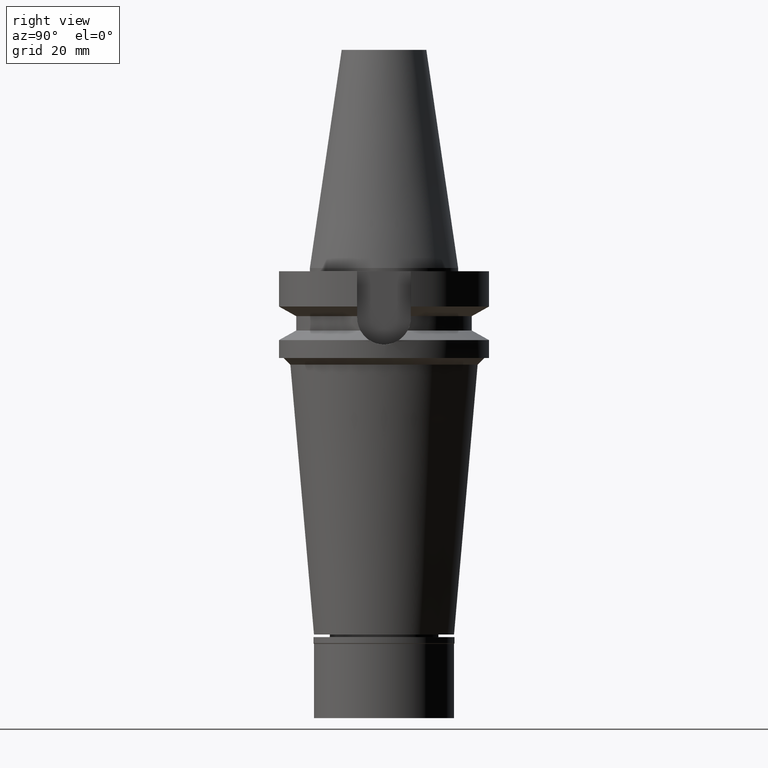
[diagram: clean part render]
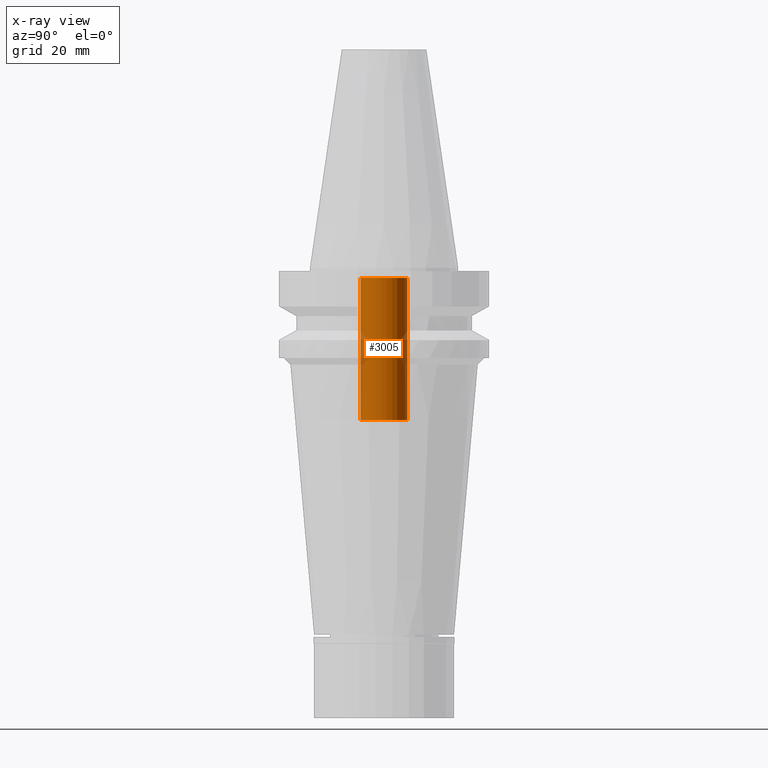
[diagram: x-ray — body ghosted, one internal face saturated and labeled with its STEP entity id]
A machine part, right view, then the same camera in x-ray: the body is ghosted and one INTERNAL B-rep face — a face not visible from any outside direction — is saturated and labeled: STEP entity #3005.
In plain terms, the highlighted cylindrical surface (edge-blend (fillet) strip) has radius 7 mm, axis along (0, 0, -1).
Its self-contained STEP definition (entity closure, byte-faithful):
#67 = VERTEX_POINT ( 'NONE', #2377 ) ;
#133 = VERTEX_POINT ( 'NONE', #469 ) ;
#157 = EDGE_CURVE ( 'NONE', #67, #133, #676, .T. ) ;
#248 = LINE ( 'NONE', #963, #3014 ) ;
#255 = CARTESIAN_POINT ( 'NONE',  ( 0.0000000000000000000, -7.000000000000000000, -45.60000000000000142 ) ) ;
#412 = DIRECTION ( 'NONE',  ( 0.0000000000000000000, 0.0000000000000000000, 1.000000000000000000 ) ) ;
#416 = AXIS2_PLACEMENT_3D ( 'NONE', #2178, #1696, #2406 ) ;
#442 = EDGE_CURVE ( 'NONE', #2252, #2541, #2914, .T. ) ;
#469 = CARTESIAN_POINT ( 'NONE',  ( 0.0000000000000000000, -7.000000000000000000, -45.60000000000000142 ) ) ;
#633 = ORIENTED_EDGE ( 'NONE', *, *, #1170, .T. ) ;
#676 = CIRCLE ( 'NONE', #416, 7.000000000000000000 ) ;
#733 = DIRECTION ( 'NONE',  ( 0.0000000000000000000, 0.0000000000000000000, 1.000000000000000000 ) ) ;
#841 = CARTESIAN_POINT ( 'NONE',  ( 0.0000000000000000000, 2.143682989567000019E-14, -3.000000000000000000 ) ) ;
#861 = EDGE_CURVE ( 'NONE', #67, #2541, #248, .T. ) ;
#862 = DIRECTION ( 'NONE',  ( 0.0000000000000000000, 0.0000000000000000000, -1.000000000000000000 ) ) ;
#879 = DIRECTION ( 'NONE',  ( 0.0000000000000000000, -1.000000000000000000, 0.0000000000000000000 ) ) ;
#963 = CARTESIAN_POINT ( 'NONE',  ( 0.0000000000000000000, 7.000000000000000000, -45.60000000000000142 ) ) ;
#1170 = EDGE_CURVE ( 'NONE', #133, #2252, #2216, .T. ) ;
#1339 = CARTESIAN_POINT ( 'NONE',  ( 0.0000000000000000000, 2.143682989567000019E-14, 75.04500000000000171 ) ) ;
#1511 = CARTESIAN_POINT ( 'NONE',  ( 0.0000000000000000000, -7.000000000000000000, -3.000000000000000000 ) ) ;
#1629 = FACE_OUTER_BOUND ( 'NONE', #2878, .T. ) ;
#1696 = DIRECTION ( 'NONE',  ( 0.0000000000000000000, 0.0000000000000000000, -1.000000000000000000 ) ) ;
#1827 = DIRECTION ( 'NONE',  ( 0.0000000000000000000, 0.0000000000000000000, 1.000000000000000000 ) ) ;
#2055 = VECTOR ( 'NONE', #412, 1000.000000000000000 ) ;
#2160 = ORIENTED_EDGE ( 'NONE', *, *, #861, .F. ) ;
#2178 = CARTESIAN_POINT ( 'NONE',  ( 0.0000000000000000000, 2.143682989567000019E-14, -45.60000000000000142 ) ) ;
#2216 = LINE ( 'NONE', #255, #2055 ) ;
#2252 = VERTEX_POINT ( 'NONE', #1511 ) ;
#2339 = CYLINDRICAL_SURFACE ( 'NONE', #2905, 7.000000000000000000 ) ;
#2377 = CARTESIAN_POINT ( 'NONE',  ( 0.0000000000000000000, 7.000000000000000000, -45.60000000000000142 ) ) ;
#2390 = DIRECTION ( 'NONE',  ( 0.0000000000000000000, -1.000000000000000000, 0.0000000000000000000 ) ) ;
#2406 = DIRECTION ( 'NONE',  ( 0.0000000000000000000, 1.000000000000000000, 0.0000000000000000000 ) ) ;
#2531 = ORIENTED_EDGE ( 'NONE', *, *, #157, .T. ) ;
#2541 = VERTEX_POINT ( 'NONE', #2882 ) ;
#2615 = AXIS2_PLACEMENT_3D ( 'NONE', #841, #1827, #879 ) ;
#2842 = ORIENTED_EDGE ( 'NONE', *, *, #442, .T. ) ;
#2878 = EDGE_LOOP ( 'NONE', ( #2531, #633, #2842, #2160 ) ) ;
#2882 = CARTESIAN_POINT ( 'NONE',  ( 0.0000000000000000000, 7.000000000000000000, -3.000000000000000000 ) ) ;
#2905 = AXIS2_PLACEMENT_3D ( 'NONE', #1339, #862, #2390 ) ;
#2914 = CIRCLE ( 'NONE', #2615, 7.000000000000000000 ) ;
#3005 = ADVANCED_FACE ( 'NONE', ( #1629 ), #2339, .F. ) ;
#3014 = VECTOR ( 'NONE', #733, 1000.000000000000000 ) ;